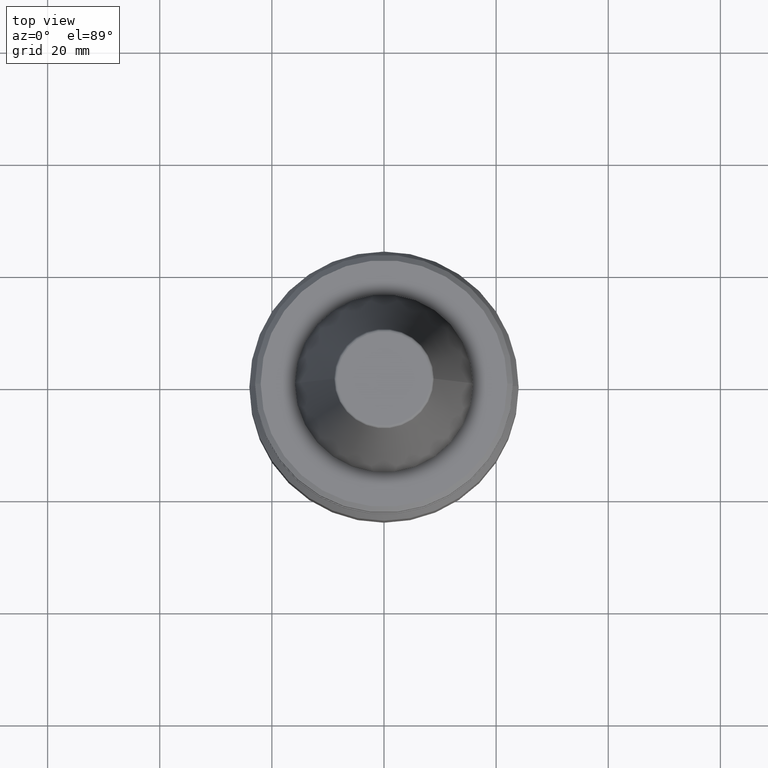
[diagram: clean part render]
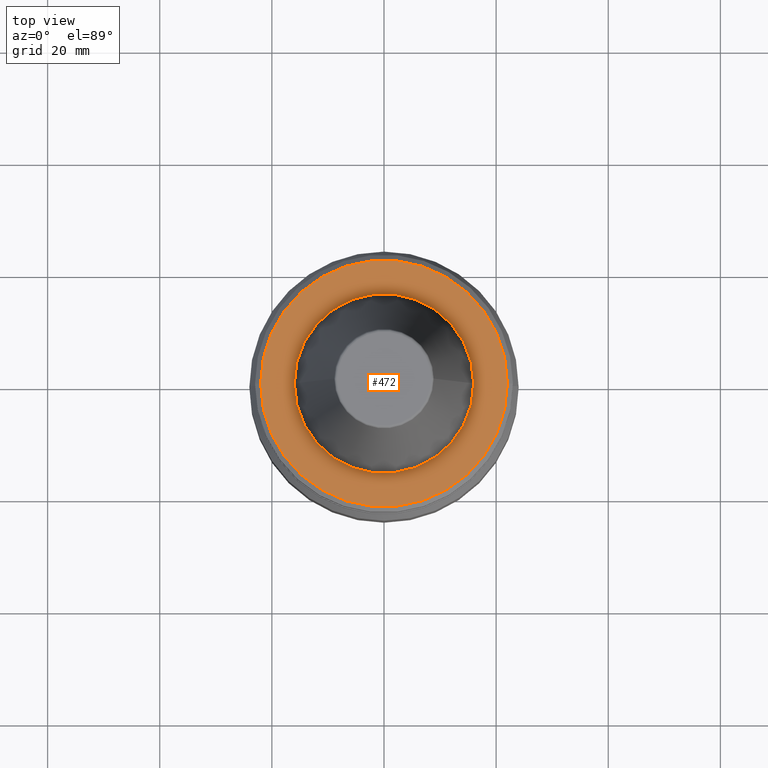
[diagram: same view with one face highlighted and labeled with its STEP entity id]
A machine part, top view. The second image highlights one B-rep face of the part: STEP entity #472.
In plain terms, the highlighted planar face has unit normal (0, 0, -1).
Its self-contained STEP definition (entity closure, byte-faithful):
#100 = PLANE ( 'NONE',  #586 ) ;
#102 = VERTEX_POINT ( 'NONE', #570 ) ;
#107 = FACE_OUTER_BOUND ( 'NONE', #545, .T. ) ;
#115 = AXIS2_PLACEMENT_3D ( 'NONE', #457, #998, #540 ) ;
#131 = VERTEX_POINT ( 'NONE', #163 ) ;
#146 = DIRECTION ( 'NONE',  ( -0.0000000000000000000, -0.0000000000000000000, 1.000000000000000000 ) ) ;
#162 = CARTESIAN_POINT ( 'NONE',  ( 0.0000000000000000000, 0.0000000000000000000, -2.000000000000001800 ) ) ;
#163 = CARTESIAN_POINT ( 'NONE',  ( 22.00000000000013100, 2.755455298081553800E-015, -2.000000000000001800 ) ) ;
#182 = DIRECTION ( 'NONE',  ( 0.0000000000000000000, 0.0000000000000000000, -1.000000000000000000 ) ) ;
#234 = EDGE_LOOP ( 'NONE', ( #399, #1012 ) ) ;
#243 = DIRECTION ( 'NONE',  ( 1.000000000000000000, 0.0000000000000000000, 0.0000000000000000000 ) ) ;
#258 = ORIENTED_EDGE ( 'NONE', *, *, #785, .T. ) ;
#268 = AXIS2_PLACEMENT_3D ( 'NONE', #304, #448, #997 ) ;
#304 = CARTESIAN_POINT ( 'NONE',  ( 0.0000000000000000000, 0.0000000000000000000, -2.000000000000001800 ) ) ;
#399 = ORIENTED_EDGE ( 'NONE', *, *, #604, .F. ) ;
#448 = DIRECTION ( 'NONE',  ( -0.0000000000000000000, -0.0000000000000000000, 1.000000000000000000 ) ) ;
#457 = CARTESIAN_POINT ( 'NONE',  ( 0.0000000000000000000, 0.0000000000000000000, -2.000000000000001800 ) ) ;
#462 = CARTESIAN_POINT ( 'NONE',  ( 0.0000000000000000000, 22.00000000000013100, -2.000000000000001800 ) ) ;
#470 = CARTESIAN_POINT ( 'NONE',  ( 0.0000000000000000000, 0.0000000000000000000, -2.000000000000001800 ) ) ;
#472 = ADVANCED_FACE ( 'NONE', ( #888, #107 ), #100, .F. ) ;
#473 = DIRECTION ( 'NONE',  ( 1.000000000000000000, 0.0000000000000000000, 0.0000000000000000000 ) ) ;
#519 = CARTESIAN_POINT ( 'NONE',  ( -16.00000000000056800, 1.959434878635834900E-015, -2.000000000000112800 ) ) ;
#540 = DIRECTION ( 'NONE',  ( 1.000000000000000000, 0.0000000000000000000, 0.0000000000000000000 ) ) ;
#545 = EDGE_LOOP ( 'NONE', ( #258, #591 ) ) ;
#570 = CARTESIAN_POINT ( 'NONE',  ( -22.00000000000013100, 0.0000000000000000000, -2.000000000000001800 ) ) ;
#586 = AXIS2_PLACEMENT_3D ( 'NONE', #462, #182, #761 ) ;
#591 = ORIENTED_EDGE ( 'NONE', *, *, #909, .T. ) ;
#604 = EDGE_CURVE ( 'NONE', #606, #907, #791, .T. ) ;
#606 = VERTEX_POINT ( 'NONE', #834 ) ;
#698 = CIRCLE ( 'NONE', #268, 16.00000000000056800 ) ;
#735 = DIRECTION ( 'NONE',  ( -0.0000000000000000000, -0.0000000000000000000, 1.000000000000000000 ) ) ;
#761 = DIRECTION ( 'NONE',  ( -1.000000000000000000, 0.0000000000000000000, -0.0000000000000000000 ) ) ;
#785 = EDGE_CURVE ( 'NONE', #102, #131, #926, .T. ) ;
#791 = CIRCLE ( 'NONE', #872, 16.00000000000056800 ) ;
#834 = CARTESIAN_POINT ( 'NONE',  ( 16.00000000000056800, 0.0000000000000000000, -2.000000000000112800 ) ) ;
#860 = EDGE_CURVE ( 'NONE', #907, #606, #698, .T. ) ;
#872 = AXIS2_PLACEMENT_3D ( 'NONE', #162, #735, #473 ) ;
#888 = FACE_BOUND ( 'NONE', #234, .T. ) ;
#894 = AXIS2_PLACEMENT_3D ( 'NONE', #470, #146, #243 ) ;
#901 = CIRCLE ( 'NONE', #894, 22.00000000000013100 ) ;
#907 = VERTEX_POINT ( 'NONE', #519 ) ;
#909 = EDGE_CURVE ( 'NONE', #131, #102, #901, .T. ) ;
#926 = CIRCLE ( 'NONE', #115, 22.00000000000013100 ) ;
#997 = DIRECTION ( 'NONE',  ( 1.000000000000000000, 0.0000000000000000000, 0.0000000000000000000 ) ) ;
#998 = DIRECTION ( 'NONE',  ( -0.0000000000000000000, -0.0000000000000000000, 1.000000000000000000 ) ) ;
#1012 = ORIENTED_EDGE ( 'NONE', *, *, #860, .F. ) ;